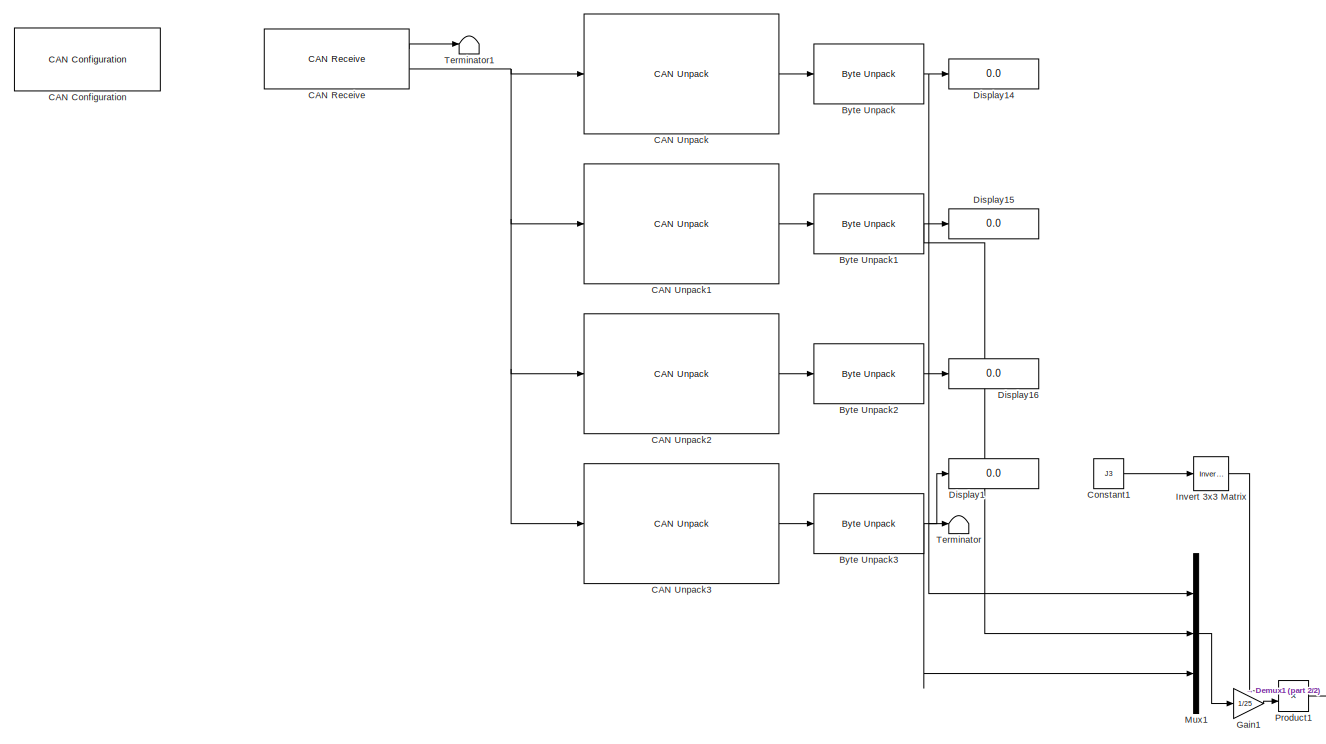
[diagram: root canvas - part 1/2, center side, full height]
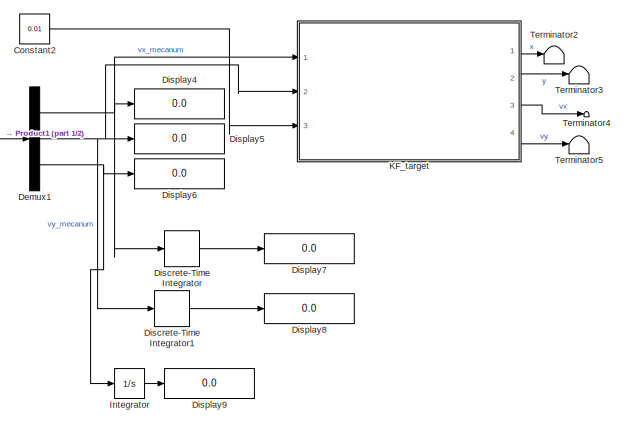
[diagram: root canvas - part 2/2, bottom right region]
MODEL slx_7bad1fc4b170
KIND model
CONFIG AbsTol = auto
CONFIG EnableMultiTasking = off
CONFIG FixedStep = 0.01
CONFIG InitFcn = mecanum_init
CONFIG MaxStep = auto
CONFIG MinStep = auto
CONFIG RelTol = 1e-3
CONFIG SampleTimeConstraint = Unconstrained
CONFIG Solver = FixedStepAuto
CONFIG SolverName = FixedStepAuto
CONFIG StartTime = 0.0
CONFIG StopTime = inf
BLOCK [Reference] Byte Unpack  REF=etargetslib/Byte Unpack
  Ports = [1, 1]
  SourceBlock = etargetslib/Byte Unpack
  SourceProductBaseCode = ME
  SourceProductName = MATLAB Coder
  SourceType = Byte Unpack
BLOCK [Reference] Byte Unpack1  REF=etargetslib/Byte Unpack
  Ports = [1, 1]
  SourceBlock = etargetslib/Byte Unpack
  SourceProductBaseCode = ME
  SourceProductName = MATLAB Coder
  SourceType = Byte Unpack
BLOCK [Reference] Byte Unpack2  REF=etargetslib/Byte Unpack
  Ports = [1, 1]
  SourceBlock = etargetslib/Byte Unpack
  SourceProductBaseCode = ME
  SourceProductName = MATLAB Coder
  SourceType = Byte Unpack
BLOCK [Reference] Byte Unpack3  REF=etargetslib/Byte Unpack
  Ports = [1, 1]
  SourceBlock = etargetslib/Byte Unpack
  SourceProductBaseCode = ME
  SourceProductName = MATLAB Coder
  SourceType = Byte Unpack
BLOCK [Reference] CAN Configuration  REF=canlib/CAN Configuration
  Ports = []
  SourceBlock = canlib/CAN Configuration
  SourceProductBaseCode = VN
  SourceProductName = Vehicle Network Toolbox
  SourceType = CAN Configuration
BLOCK [Reference] CAN Receive  REF=canlib/CAN Receive
  Ports = [0, 2]
  SourceBlock = canlib/CAN Receive
  SourceProductBaseCode = VN
  SourceProductName = Vehicle Network Toolbox
  SourceType = CAN Receive
BLOCK [Reference] CAN Unpack  REF=canmsglib/CAN Unpack
  Ports = [1, 1]
  SourceBlock = canmsglib/CAN Unpack
  SourceProductBaseCode = VN
  SourceProductName = Vehicle Network Toolbox
  SourceType = CAN Unpack
BLOCK [Reference] CAN Unpack1  REF=canmsglib/CAN Unpack
  Ports = [1, 1]
  SourceBlock = canmsglib/CAN Unpack
  SourceProductBaseCode = VN
  SourceProductName = Vehicle Network Toolbox
  SourceType = CAN Unpack
BLOCK [Reference] CAN Unpack2  REF=canmsglib/CAN Unpack
  Ports = [1, 1]
  SourceBlock = canmsglib/CAN Unpack
  SourceProductBaseCode = VN
  SourceProductName = Vehicle Network Toolbox
  SourceType = CAN Unpack
BLOCK [Reference] CAN Unpack3  REF=canmsglib/CAN Unpack
  Ports = [1, 1]
  SourceBlock = canmsglib/CAN Unpack
  SourceProductBaseCode = VN
  SourceProductName = Vehicle Network Toolbox
  SourceType = CAN Unpack
BLOCK [Constant] Constant1
  Value = J3
BLOCK [Constant] Constant2
  Value = 0.01
BLOCK [Demux] Demux1
  DisplayOption = bar
  Outputs = 3
  Ports = [1, 3]
BLOCK [DiscreteIntegrator] Discrete-Time Integrator
  ICPrevOutput = DiscIntNeverNeededParam
  ICPrevScaledInput = DiscIntNeverNeededParam
  InitialConditionSetting = Auto
  Ports = [1, 1]
  SampleTime = -1
BLOCK [DiscreteIntegrator] Discrete-Time Integrator1
  ICPrevOutput = DiscIntNeverNeededParam
  ICPrevScaledInput = DiscIntNeverNeededParam
  InitialConditionSetting = Auto
  Ports = [1, 1]
  SampleTime = -1
BLOCK [Display] Display1
  Decimation = 1
  Ports = [1]
BLOCK [Display] Display14
  Decimation = 1
  Ports = [1]
BLOCK [Display] Display15
  Decimation = 1
  Ports = [1]
BLOCK [Display] Display16
  Decimation = 1
  Ports = [1]
BLOCK [Display] Display4
  Decimation = 1
  Ports = [1]
BLOCK [Display] Display5
  Decimation = 1
  Ports = [1]
BLOCK [Display] Display6
  Decimation = 1
  Ports = [1]
BLOCK [Display] Display7
  Decimation = 1
  Ports = [1]
BLOCK [Display] Display8
  Decimation = 1
  Ports = [1]
BLOCK [Display] Display9
  Commented = on
  Decimation = 1
  Ports = [1]
BLOCK [Gain] Gain1
  Gain = 1/25
  Multiplication = Matrix(K*u)
  OutDataTypeStr = Inherit: Inherit via internal rule
  ParamDataTypeStr = Inherit: Inherit via internal rule
  SaturateOnIntegerOverflow = off
BLOCK [Integrator] Integrator
  Commented = on
  Ports = [1, 1]
BLOCK [Reference] Invert 3x3 Matrix  REF=aerolibutil/Invert 
3x3 Matrix
  Ports = [1, 1]
  SourceBlock = aerolibutil/Invert \n3x3 Matrix
  SourceProductBaseCode = AE
  SourceProductName = Aerospace Blockset
  SourceType = Invert 3x3 Matrix
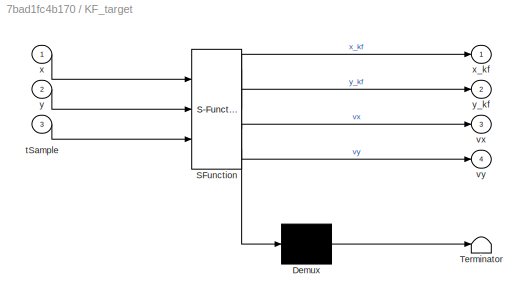
BLOCK [SubSystem] KF_target
  ErrorFcn = Stateflow.Translate.translate
  PermitHierarchicalResolution = ExplicitOnly
  Ports = [3, 4]
  RequestExecContextInheritance = off
  SFBlockType = MATLAB Function
  TreatAsAtomicUnit = on
BLOCK [Demux] KF_target/ Demux 
  Outputs = 1
  Ports = [1, 1]
BLOCK [S-Function] KF_target/ SFunction 
  EnableBusSupport = on
  FunctionName = sf_sfun
  PortCounts = [3 5]
  Ports = [3, 5]
  SFcnIsStateOwnerBlock = off
  SFunctionDeploymentMode = off
  Tag = Stateflow S-Function 1
BLOCK [Terminator] KF_target/ Terminator 
BLOCK [Inport] KF_target/tSample
  IconDisplay = Port number
  Port = 3
BLOCK [Outport] KF_target/vx
  IconDisplay = Port number
  Port = 3
BLOCK [Outport] KF_target/vy
  IconDisplay = Port number
  Port = 4
BLOCK [Inport] KF_target/x
  IconDisplay = Port number
BLOCK [Outport] KF_target/x_kf
  IconDisplay = Port number
  VectorParamsAs1DForOutWhenUnconnected = off
BLOCK [Inport] KF_target/y
  IconDisplay = Port number
  Port = 2
BLOCK [Outport] KF_target/y_kf
  IconDisplay = Port number
  Port = 2
BLOCK [Mux] Mux1
  DisplayOption = bar
  Inputs = 3
  Ports = [3, 1]
BLOCK [Product] Product1
  InputSameDT = off
  Multiplication = Matrix(*)
  OutDataTypeStr = Inherit: Inherit via internal rule
  Ports = [2, 1]
  RndMeth = Floor
  SaturateOnIntegerOverflow = off
BLOCK [Terminator] Terminator
BLOCK [Terminator] Terminator1
  Commented = on
BLOCK [Terminator] Terminator2
  Commented = on
BLOCK [Terminator] Terminator3
  Commented = on
BLOCK [Terminator] Terminator4
  Commented = on
BLOCK [Terminator] Terminator5
  Commented = on
NET Byte Unpack1:1 -> Display15:1, Mux1:2
LINE Byte Unpack2:1 -> Display16:1
NET Byte Unpack3:1 -> Display1:1, Mux1:3, Terminator:1
NET Byte Unpack:1 -> Display14:1, Mux1:1
LINE CAN Receive:1 -> Terminator1:1
NET CAN Receive:2 -> CAN Unpack1:1, CAN Unpack2:1, CAN Unpack3:1, CAN Unpack:1
LINE CAN Unpack1:1 -> Byte Unpack1:1
LINE CAN Unpack2:1 -> Byte Unpack2:1
LINE CAN Unpack3:1 -> Byte Unpack3:1
LINE CAN Unpack:1 -> Byte Unpack:1
LINE Constant1:1 -> Invert 3x3 Matrix:1
LINE Constant2:1 -> KF_target:3
NET Demux1:1 -> Discrete-Time Integrator:1, Display4:1, KF_target:1
NET Demux1:2 -> Discrete-Time Integrator1:1, Display5:1, KF_target:2
NET Demux1:3 -> Display6:1, Integrator:1
LINE Discrete-Time Integrator1:1 -> Display8:1
LINE Discrete-Time Integrator:1 -> Display7:1
LINE Gain1:1 -> Product1:2
LINE Integrator:1 -> Display9:1
LINE Invert 3x3 Matrix:1 -> Product1:1
LINE KF_target:1 -> Terminator2:1
LINE KF_target:2 -> Terminator3:1
LINE KF_target:3 -> Terminator4:1
LINE KF_target:4 -> Terminator5:1
LINE Mux1:1 -> Gain1:1
LINE Product1:1 -> Demux1:1
note: NET lines group one-source signal fan-out (src -> all destinations, sorted); 1:1 wires keep LINE
CHART KF_target states=1 transitions=1
  STATE_LABEL 'eML_blk_kernel()'
  STATE_LABEL 'SCRIPT:\nfunction [x_kf,y_kf,vx,vy]   = fcn(x,y,tSample)\n\npersistent x_dach P Q R C I A_d firstRun A\n\nif isempty(firstRun)\n    \n  firstRun = 1;\n  \n     I=eye(6);\n\n     A = [0 0 1 0 0 0;\n          0 0 0 1 0 0;\n          0 0 0 0 1 0;\n          0 0 0 0 0 1;\n          0 0 0 0 0 0;\n          0 0 0 0 0 0];\n      \n     A_d = expm(A*tSample);\n       \n    C=[0 0 1 0 0 0\n       0 0 0 1 0 0];\n\n    Q=0.001*I;\n...<+311ch>'
